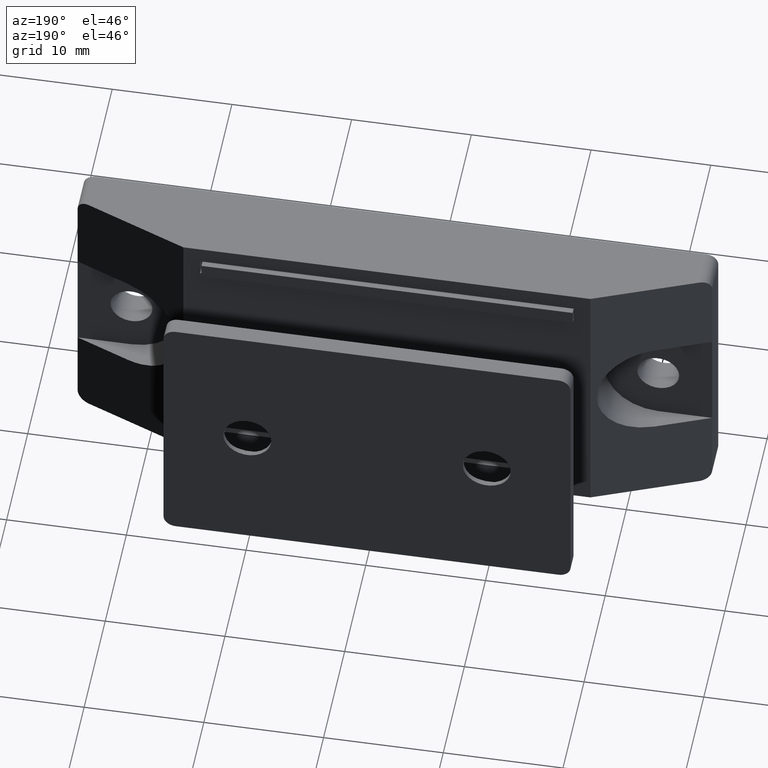
[diagram: clean part render]
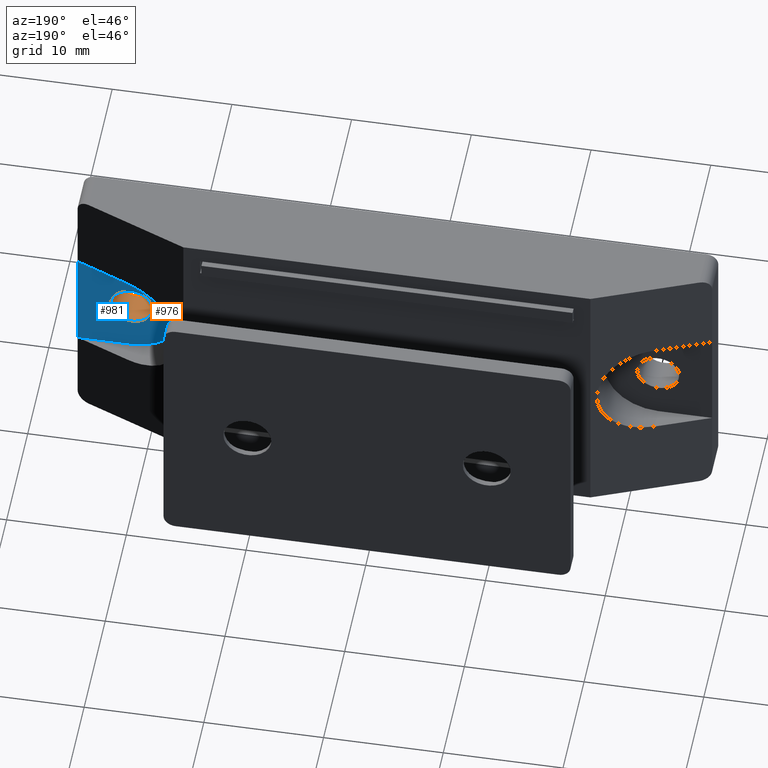
[diagram: same view with the hole feature highlighted: cylindrical wall and planar end face, labeled with their STEP entity ids]
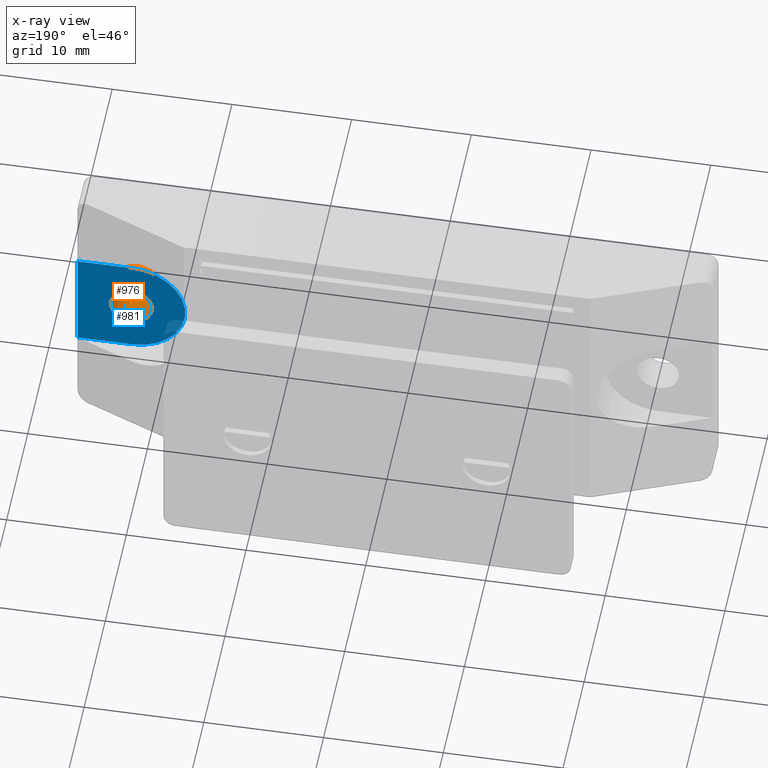
[diagram: x-ray of the same camera — body ghosted, the hole faces saturated]
A machine part, auxiliary view. The highlighted faces form one hole feature of diameter 3.5 mm: the cylindrical wall (entity #976, orange) and its adjacent planar end face (entity #981, blue) — they share a circular edge in the B-rep.
The next image is the same camera in x-ray (body ghosted, the hole faces saturated) — the bore reads through the body.
Wall:
#45=FACE_BOUND('',#172,.T.);
#110=FACE_OUTER_BOUND('',#171,.T.);
#171=EDGE_LOOP('',(#744));
#172=EDGE_LOOP('',(#745));
#447=CIRCLE('',#1038,1.75);
#449=CIRCLE('',#1052,1.75);
#480=VERTEX_POINT('',#1449);
#493=VERTEX_POINT('',#1490);
#572=EDGE_CURVE('',#480,#480,#447,.T.);
#592=EDGE_CURVE('',#493,#493,#449,.T.);
#744=ORIENTED_EDGE('',*,*,#572,.F.);
#745=ORIENTED_EDGE('',*,*,#592,.F.);
#957=CYLINDRICAL_SURFACE('',#1051,1.75);
#976=ADVANCED_FACE('',(#110,#45),#957,.F.);
#1038=AXIS2_PLACEMENT_3D('',#1450,#1153,#1154);
#1051=AXIS2_PLACEMENT_3D('',#1489,#1193,#1194);
#1052=AXIS2_PLACEMENT_3D('',#1491,#1195,#1196);
#1153=DIRECTION('center_axis',(0.,0.,1.));
#1154=DIRECTION('ref_axis',(-1.,0.,0.));
#1193=DIRECTION('center_axis',(0.,0.,-1.));
#1194=DIRECTION('ref_axis',(-1.,0.,0.));
#1195=DIRECTION('center_axis',(0.,0.,-1.));
#1196=DIRECTION('ref_axis',(-1.,0.,0.));
#1449=CARTESIAN_POINT('',(23.75,-6.32425663055026E-17,-6.7));
#1450=CARTESIAN_POINT('Origin',(22.,-2.77555756156289E-16,-6.7));
#1489=CARTESIAN_POINT('Origin',(22.,-2.77555756156289E-16,-3.8));
#1490=CARTESIAN_POINT('',(23.75,-6.32425663055026E-17,-3.8));
#1491=CARTESIAN_POINT('Origin',(22.,-2.77555756156289E-16,-3.8));
End face:
#47=FACE_BOUND('',#179,.T.);
#66=PLANE('',#1058);
#115=FACE_OUTER_BOUND('',#178,.T.);
#178=EDGE_LOOP('',(#761,#762,#763,#764));
#179=EDGE_LOOP('',(#765));
#266=LINE('',#1506,#368);
#267=LINE('',#1508,#369);
#268=LINE('',#1511,#370);
#368=VECTOR('',#1213,9.);
#369=VECTOR('',#1214,4.5);
#370=VECTOR('',#1217,4.5);
#449=CIRCLE('',#1052,1.75);
#451=CIRCLE('',#1059,4.5);
#493=VERTEX_POINT('',#1490);
#496=VERTEX_POINT('',#1504);
#497=VERTEX_POINT('',#1505);
#498=VERTEX_POINT('',#1507);
#499=VERTEX_POINT('',#1509);
#592=EDGE_CURVE('',#493,#493,#449,.T.);
#598=EDGE_CURVE('',#496,#497,#266,.T.);
#599=EDGE_CURVE('',#498,#497,#267,.T.);
#600=EDGE_CURVE('',#499,#498,#451,.T.);
#601=EDGE_CURVE('',#496,#499,#268,.T.);
#761=ORIENTED_EDGE('',*,*,#598,.T.);
#762=ORIENTED_EDGE('',*,*,#599,.F.);
#763=ORIENTED_EDGE('',*,*,#600,.F.);
#764=ORIENTED_EDGE('',*,*,#601,.F.);
#765=ORIENTED_EDGE('',*,*,#592,.T.);
#981=ADVANCED_FACE('',(#115,#47),#66,.T.);
#1052=AXIS2_PLACEMENT_3D('',#1491,#1195,#1196);
#1058=AXIS2_PLACEMENT_3D('',#1503,#1211,#1212);
#1059=AXIS2_PLACEMENT_3D('',#1510,#1215,#1216);
#1195=DIRECTION('center_axis',(0.,0.,-1.));
#1196=DIRECTION('ref_axis',(-1.,0.,0.));
#1211=DIRECTION('center_axis',(0.,0.,1.));
#1212=DIRECTION('ref_axis',(-1.,0.,0.));
#1213=DIRECTION('',(0.,1.,0.));
#1214=DIRECTION('',(1.,-6.93889351616634E-17,0.));
#1215=DIRECTION('center_axis',(0.,0.,-1.));
#1216=DIRECTION('ref_axis',(0.,1.,0.));
#1217=DIRECTION('',(-1.,-6.93889351616634E-17,0.));
#1490=CARTESIAN_POINT('',(23.75,-6.32425663055026E-17,-3.8));
#1491=CARTESIAN_POINT('Origin',(22.,-2.77555756156289E-16,-3.8));
#1503=CARTESIAN_POINT('Origin',(23.7500002235174,0.,-3.8));
#1504=CARTESIAN_POINT('',(26.5,-4.5,-3.8));
#1505=CARTESIAN_POINT('',(26.5,4.5,-3.8));
#1506=CARTESIAN_POINT('',(26.5,0.,-3.8));
#1507=CARTESIAN_POINT('',(22.,4.5,-3.8));
#1508=CARTESIAN_POINT('',(22.,4.5,-3.8));
#1509=CARTESIAN_POINT('',(22.,-4.5,-3.8));
#1510=CARTESIAN_POINT('Origin',(22.,0.,-3.8));
#1511=CARTESIAN_POINT('',(22.,-4.5,-3.8));